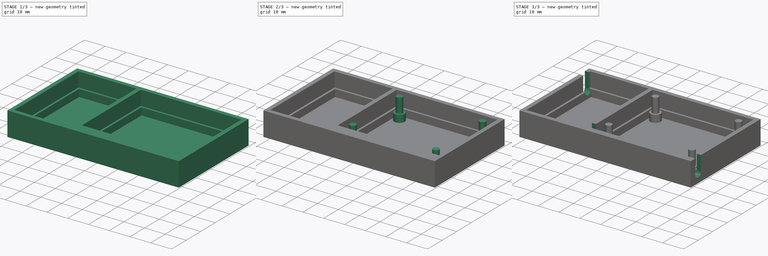
[diagram: build sequence overview — one tinted view per stage of 3, left to right]
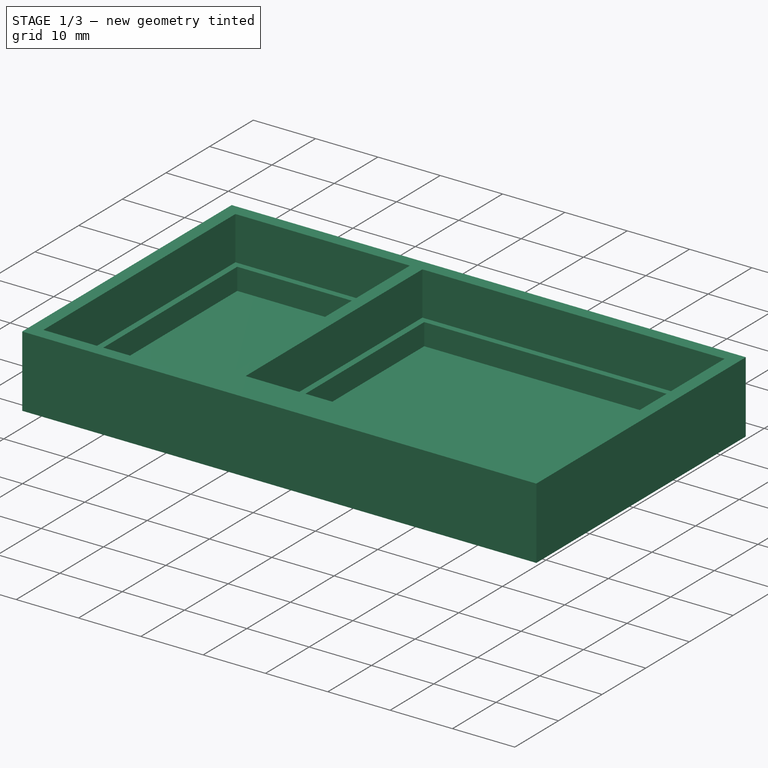
[diagram: stage 1 of 3 — iso view after this stage's code; geometry added in this stage tinted green]
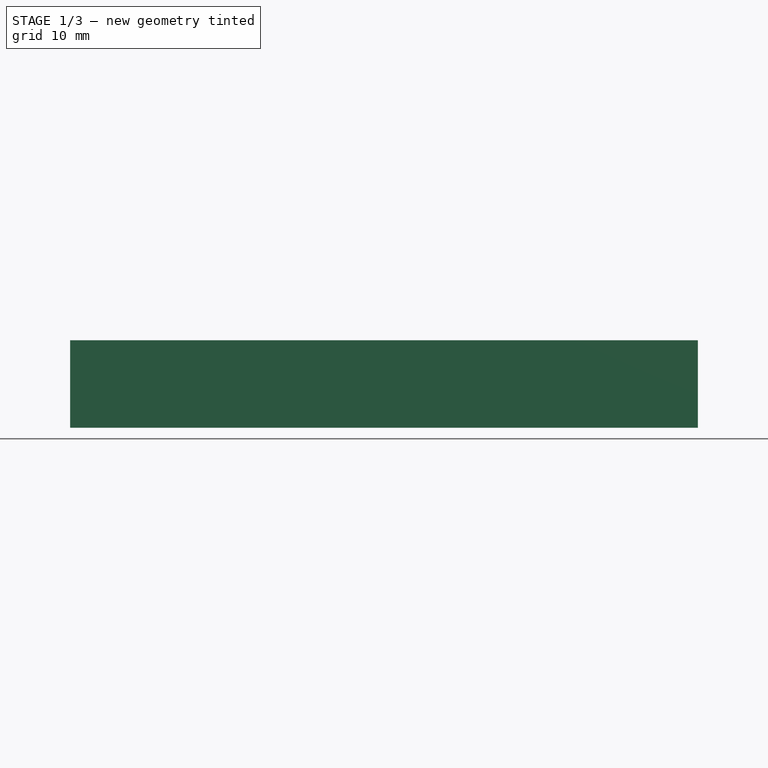
[diagram: stage 1 of 3 — front view after this stage's code; geometry added in this stage tinted green]
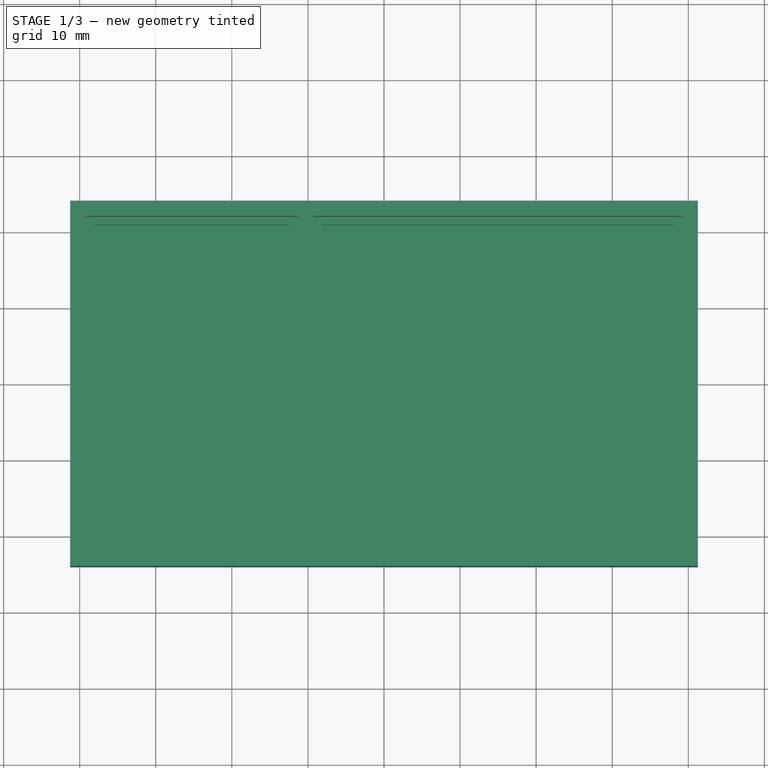
[diagram: stage 1 of 3 — top view after this stage's code; geometry added in this stage tinted green]
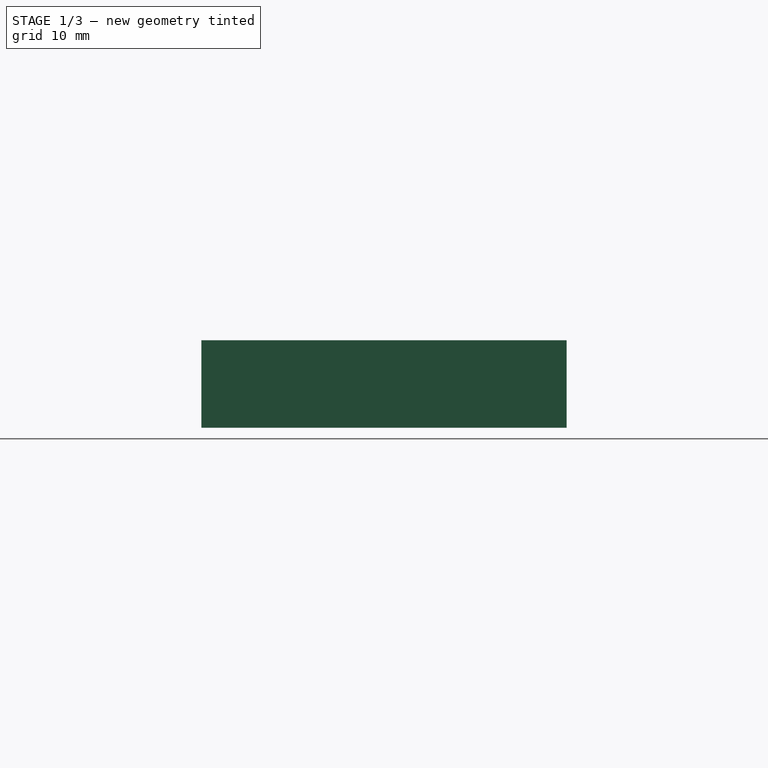
[diagram: stage 1 of 3 — right view after this stage's code; geometry added in this stage tinted green]
FCSTD DOCUMENT  (FreeCAD 1.0R39319 (Git))
Label: fan temperature controller case 
License: All rights reserved
objects: Sketcher::SketchObject×8, PartDesign::Pad×5, PartDesign::Pocket×3, PartDesign::Body×1
note: 41 computed .brp shape members not serialized (recipe doc carries the construction recipe); baked Part::Feature solids carry a one-line shape summary decoded from their .brp

FEATURE [Sketcher::SketchObject] Sketch005
  ArcFitTolerance = 1e-06
  AttachmentSupport = -> [XY_Plane001]
  FullyConstrained = true
  MakeInternals = false
  MapMode = 5
  sketch-geometry (12):
    g0: LineSegment StartX=-41.25 StartY=24 StartZ=0 EndX=-41.25 EndY=-24 EndZ=0
    g1: LineSegment StartX=-41.25 StartY=-24 StartZ=0 EndX=41.25 EndY=-24 EndZ=0
    g2: LineSegment StartX=41.25 StartY=-24 StartZ=0 EndX=41.25 EndY=24 EndZ=0
    g3: LineSegment StartX=41.25 StartY=24 StartZ=0 EndX=-41.25 EndY=24 EndZ=0
    g4: LineSegment StartX=-39.25 StartY=22 StartZ=0 EndX=-39.25 EndY=-22 EndZ=0
    g5: LineSegment StartX=-39.25 StartY=-22 StartZ=0 EndX=-11.25 EndY=-22 EndZ=0
    g6: LineSegment StartX=-11.25 StartY=-22 StartZ=0 EndX=-11.25 EndY=22 EndZ=0
    g7: LineSegment StartX=-11.25 StartY=22 StartZ=0 EndX=-39.25 EndY=22 EndZ=0
    g8: LineSegment StartX=-9.25 StartY=22 StartZ=0 EndX=-9.25 EndY=-18.5 EndZ=0
    g9: LineSegment StartX=-9.25 StartY=-18.5 StartZ=0 EndX=39.25 EndY=-18.5 EndZ=0
    g10: LineSegment StartX=39.25 StartY=-18.5 StartZ=0 EndX=39.25 EndY=22 EndZ=0
    g11: LineSegment StartX=39.25 StartY=22 StartZ=0 EndX=-9.25 EndY=22 EndZ=0
  constraints (34):
    c: Coincident(g0,g1)
    c: Coincident(g1,g2)
    c: Coincident(g2,g3)
    c: Coincident(g3,g0)
    c: Vertical(g2)
    c: Horizontal(g1)
    c: Coincident(g4,g5)
    c: Coincident(g5,g6)
    c: Coincident(g6,g7)
    c: Coincident(g7,g4)
    c: Vertical(g4)
    c: Vertical(g6)
    c: Horizontal(g5)
    c: Horizontal(g7)
    c: Coincident(g8,g9)
    c: Coincident(g9,g10)
    c: Coincident(g10,g11)
    c: Coincident(g11,g8)
    c: Vertical(g8)
    c: Vertical(g10)
    c: Horizontal(g9)
    c: Horizontal(g11)
    c: Symmetric(g0,g2,g-2)
    c: Symmetric(g0,g0,g-1)
    c: Distance(g4,g3) = 2
    c: Distance(g4,g1) = 2
    c: Horizontal(g6,g8)
    c: Distance(g4,g0) = 2
    c: Distance(g11) = 48.5
    c: Distance(g7) = 28
    c: Distance(g10,g2) = 2
    c: Distance(g8,g6) = 2
    c: Distance(g4) = 44
    c: Distance(g10) = 40.5
FEATURE [PartDesign::Pad] Pad003
  Direction = (0,0,1)
  Length = 7
  Length2 = 10
  Profile = -> Sketch005
  ReferenceAxis = -> Sketch005 [N_Axis]
  Refine = true
  Suppressed = false
  Type = 0
FEATURE [Sketcher::SketchObject] Sketch006
  ArcFitTolerance = 1e-06
  AttachmentSupport = -> [Pad003]
  ExternalGeometry = -> [Pad003]
  FullyConstrained = true
  MakeInternals = false
  MapMode = 5
  Placement = pos=(0,0,0) rot=(1,0,0;3.14159rad)
  sketch-geometry (12):
    g0: LineSegment StartX=-41.25 StartY=24 StartZ=0 EndX=-41.25 EndY=-24 EndZ=0
    g1: LineSegment StartX=-41.25 StartY=-24 StartZ=0 EndX=41.25 EndY=-24 EndZ=0
    g2: LineSegment StartX=41.25 StartY=-24 StartZ=0 EndX=41.25 EndY=24 EndZ=0
    g3: LineSegment StartX=41.25 StartY=24 StartZ=0 EndX=-41.25 EndY=24 EndZ=0
    g4: LineSegment StartX=-38.25 StartY=21 StartZ=0 EndX=-38.25 EndY=-21 EndZ=0
    g5: LineSegment StartX=-38.25 StartY=-21 StartZ=0 EndX=-12.25 EndY=-21 EndZ=0
    g6: LineSegment StartX=-12.25 StartY=-21 StartZ=0 EndX=-12.25 EndY=21 EndZ=0
    g7: LineSegment StartX=-12.25 StartY=21 StartZ=0 EndX=-38.25 EndY=21 EndZ=0
    g8: LineSegment StartX=-8.25 StartY=17.5 StartZ=0 EndX=-8.25 EndY=-21 EndZ=0
    g9: LineSegment StartX=-8.25 StartY=-21 StartZ=0 EndX=38.25 EndY=-21 EndZ=0
    g10: LineSegment StartX=38.25 StartY=-21 StartZ=0 EndX=38.25 EndY=17.5 EndZ=0
    g11: LineSegment StartX=38.25 StartY=17.5 StartZ=0 EndX=-8.25 EndY=17.5 EndZ=0
  constraints (33):
    c: Coincident(g0,g1)
    c: Coincident(g1,g2)
    c: Coincident(g2,g3)
    c: Coincident(g3,g0)
    c: Vertical(g2)
    c: Horizontal(g1)
    c: Coincident(g0,g-4)
    c: Coincident(g2,g-3)
    c: Coincident(g0,g-4)
    c: Coincident(g4,g5)
    c: Coincident(g5,g6)
    c: Coincident(g6,g7)
    c: Coincident(g7,g4)
    c: Vertical(g4)
    c: Vertical(g6)
    c: Horizontal(g5)
    c: Horizontal(g7)
    c: Coincident(g8,g9)
    c: Coincident(g9,g10)
    c: Coincident(g10,g11)
    c: Coincident(g11,g8)
    c: Vertical(g8)
    c: Vertical(g10)
    c: Horizontal(g9)
    c: Horizontal(g11)
    c: DistanceY(g4,g-6) = 1
    c: DistanceY(g-6,g4) = 1
    c: DistanceY(g10,g-8) = 1
    c: DistanceY(g-8,g9) = 1
    c: DistanceX(g-6,g4) = 1
    c: DistanceX(g6,g-5) = 1
    c: DistanceX(g-7,g8) = 1
    c: DistanceX(g10,g-8) = 1
FEATURE [PartDesign::Pad] Pad004
  BaseFeature = -> Pad003
  Direction = (0,0,-1)
  Length = 3.5
  Length2 = 10
  Profile = -> Sketch006
  ReferenceAxis = -> Sketch006 [N_Axis]
  Refine = true
  Suppressed = false
  Type = 0
FEATURE [Sketcher::SketchObject] Sketch007
  ArcFitTolerance = 1e-06
  AttachmentSupport = -> [Pad004]
  ExternalGeometry = -> [Pad004]
  FullyConstrained = true
  MakeInternals = false
  MapMode = 5
  Placement = pos=(0,0,-3.5) rot=(1,0,0;3.14159rad)
  sketch-geometry (4):
    g0: LineSegment StartX=-41.25 StartY=24 StartZ=0 EndX=-41.25 EndY=-24 EndZ=0
    g1: LineSegment StartX=-41.25 StartY=-24 StartZ=0 EndX=41.25 EndY=-24 EndZ=0
    g2: LineSegment StartX=41.25 StartY=-24 StartZ=0 EndX=41.25 EndY=24 EndZ=0
    g3: LineSegment StartX=41.25 StartY=24 StartZ=0 EndX=-41.25 EndY=24 EndZ=0
  constraints (9):
    c: Coincident(g0,g1)
    c: Coincident(g1,g2)
    c: Coincident(g2,g3)
    c: Coincident(g3,g0)
    c: Vertical(g2)
    c: Horizontal(g1)
    c: Coincident(g0,g-4)
    c: Coincident(g2,g-3)
    c: Coincident(g0,g-4)
FEATURE [PartDesign::Pad] Pad005
  BaseFeature = -> Pad004
  Direction = (0,0,-1)
  Length = 1
  Length2 = 10
  Profile = -> Sketch007
  ReferenceAxis = -> Sketch007 [N_Axis]
  Refine = true
  Suppressed = false
  Type = 0
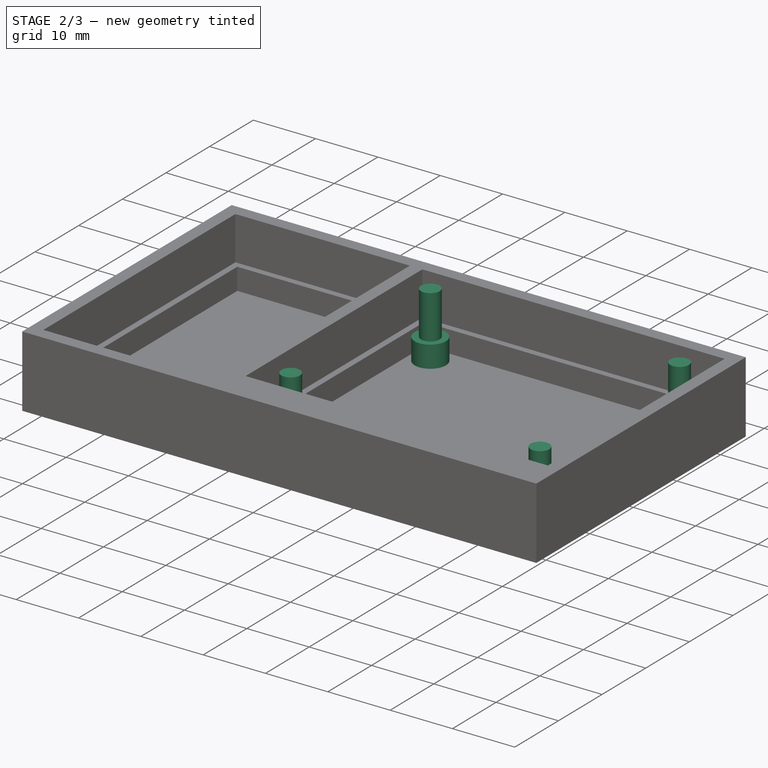
[diagram: stage 2 of 3 — iso view after this stage's code; geometry added in this stage tinted green]
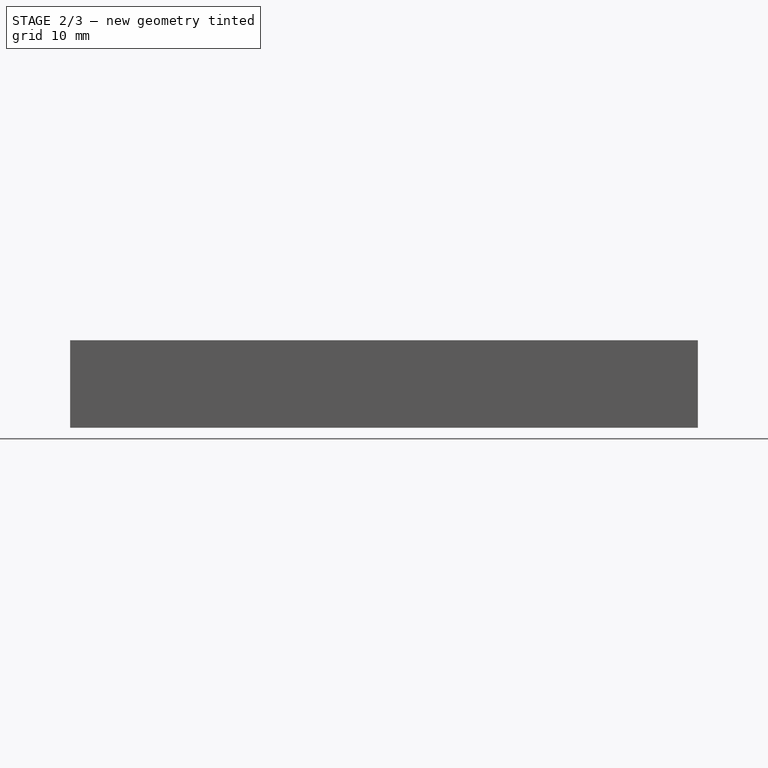
[diagram: stage 2 of 3 — front view after this stage's code; geometry added in this stage tinted green]
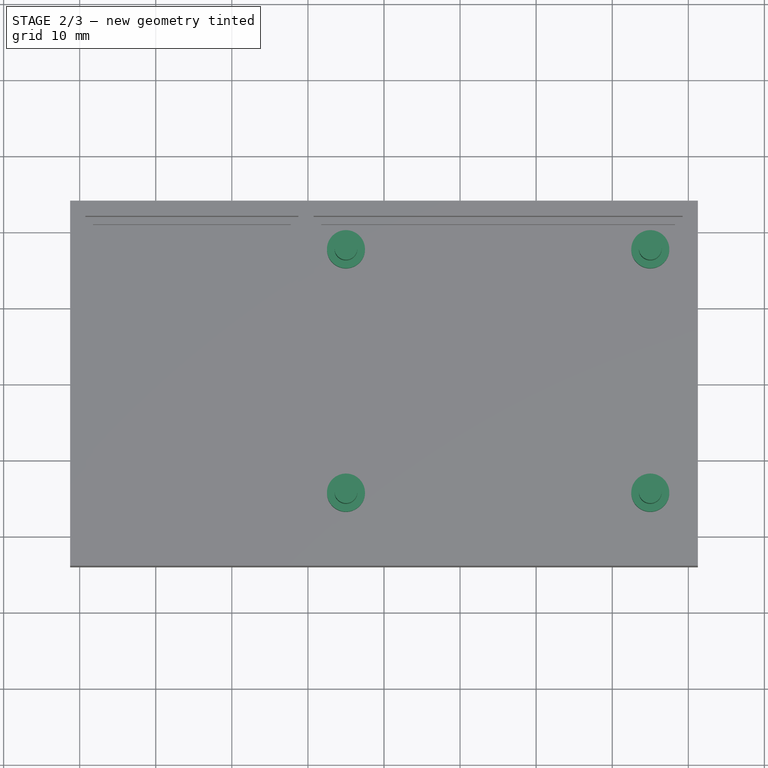
[diagram: stage 2 of 3 — top view after this stage's code; geometry added in this stage tinted green]
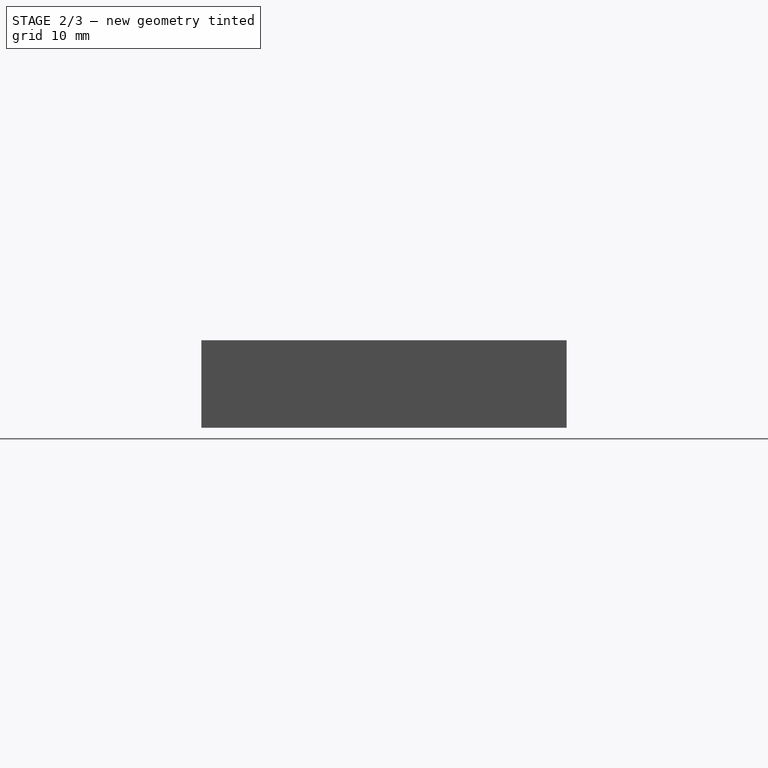
[diagram: stage 2 of 3 — right view after this stage's code; geometry added in this stage tinted green]
FEATURE [Sketcher::SketchObject] Sketch008
  ArcFitTolerance = 1e-06
  AttachmentSupport = -> [Pad005]
  ExternalGeometry = -> [Pad005]
  FullyConstrained = true
  MakeInternals = false
  MapMode = 5
  Placement = pos=(0,0,-3.5) rot=(0,0,1;0rad)
  sketch-geometry (4):
    g0: Circle CenterX=-5 CenterY=17.75 CenterZ=0 NormalX=0 NormalY=0 NormalZ=1 AngleXU=0 Radius=2.5
    g1: Circle CenterX=35 CenterY=17.75 CenterZ=0 NormalX=0 NormalY=0 NormalZ=1 AngleXU=0 Radius=2.5
    g2: Circle CenterX=35 CenterY=-14.25 CenterZ=0 NormalX=0 NormalY=0 NormalZ=1 AngleXU=0 Radius=2.5
    g3: Circle CenterX=-5 CenterY=-14.25 CenterZ=0 NormalX=0 NormalY=0 NormalZ=1 AngleXU=0 Radius=2.5
  constraints (12):
    c: Diameter(g0) = 5
    c: Equal(g0,g3)
    c: Equal(g0,g1)
    c: Equal(g0,g2)
    c: Horizontal(g0,g1)
    c: Vertical(g1,g2)
    c: Horizontal(g2,g3)
    c: Vertical(g3,g0)
    c: DistanceY(g0,g-4) = 4.25
    c: DistanceY(g-4,g3) = 4.25
    c: DistanceX(g-4,g0) = 4.25
    c: DistanceX(g1,g-3) = 4.25
FEATURE [PartDesign::Pad] Pad006
  BaseFeature = -> Pad005
  Direction = (0,0,1)
  Length = 3.5
  Length2 = 10
  Profile = -> Sketch008
  ReferenceAxis = -> Sketch008 [N_Axis]
  Refine = true
  Suppressed = false
  Type = 0
FEATURE [Sketcher::SketchObject] Sketch009
  ArcFitTolerance = 1e-06
  AttachmentSupport = -> [Pad006]
  ExternalGeometry = -> [Pad006]
  FullyConstrained = true
  MakeInternals = false
  MapMode = 5
  Placement = pos=(0,0,-9e-16) rot=(0,0,1;0rad)
  sketch-geometry (4):
    g0: Circle CenterX=-5 CenterY=17.75 CenterZ=0 NormalX=0 NormalY=0 NormalZ=1 AngleXU=0 Radius=1.5
    g1: Circle CenterX=35 CenterY=17.75 CenterZ=0 NormalX=0 NormalY=0 NormalZ=1 AngleXU=0 Radius=1.5
    g2: Circle CenterX=35 CenterY=-14.25 CenterZ=0 NormalX=0 NormalY=0 NormalZ=1 AngleXU=0 Radius=1.5
    g3: Circle CenterX=-5 CenterY=-14.25 CenterZ=0 NormalX=0 NormalY=0 NormalZ=1 AngleXU=0 Radius=1.5
  constraints (8):
    c: Diameter(g0) = 3
    c: Equal(g0,g3)
    c: Equal(g0,g1)
    c: Equal(g0,g2)
    c: Coincident(g0,g-3)
    c: Coincident(g1,g-5)
    c: Coincident(g2,g-6)
    c: Coincident(g3,g-4)
FEATURE [PartDesign::Pad] Pad007
  BaseFeature = -> Pad006
  Direction = (0,0,1)
  Length = 7
  Length2 = 10
  Profile = -> Sketch009
  ReferenceAxis = -> Sketch009 [N_Axis]
  Refine = true
  Suppressed = false
  Type = 0
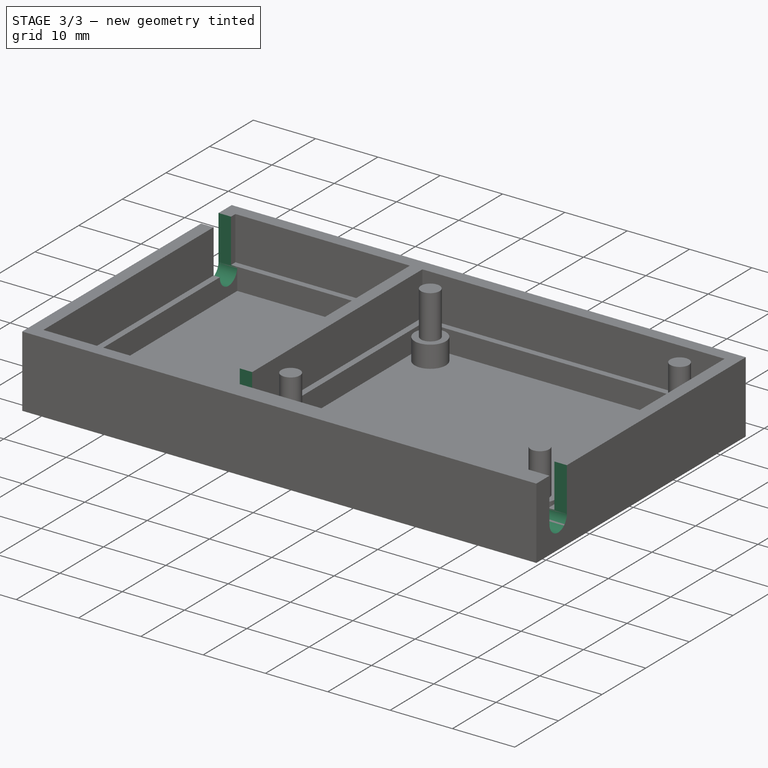
[diagram: stage 3 of 3 — iso view after this stage's code; geometry added in this stage tinted green]
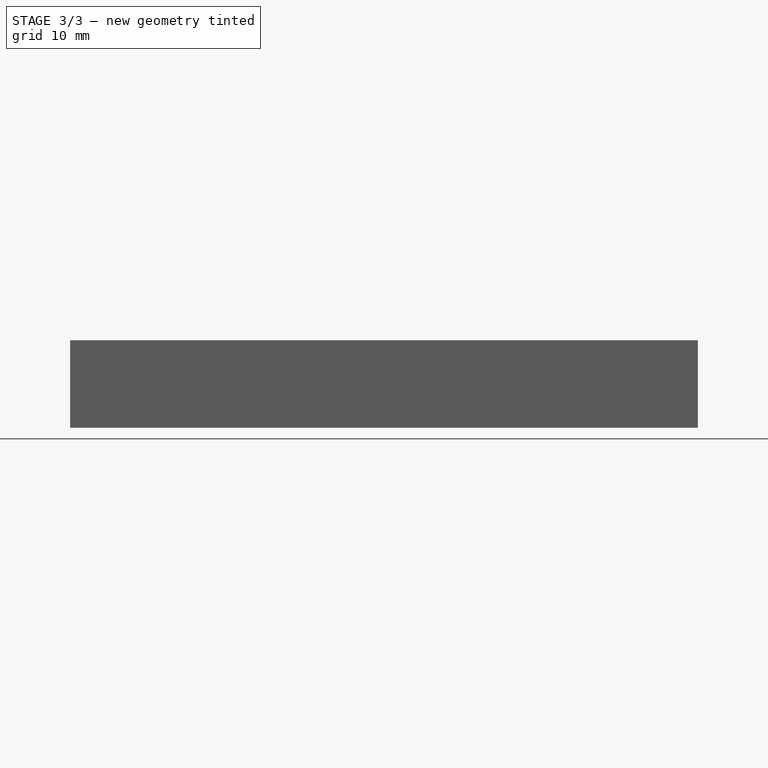
[diagram: stage 3 of 3 — front view after this stage's code; geometry added in this stage tinted green]
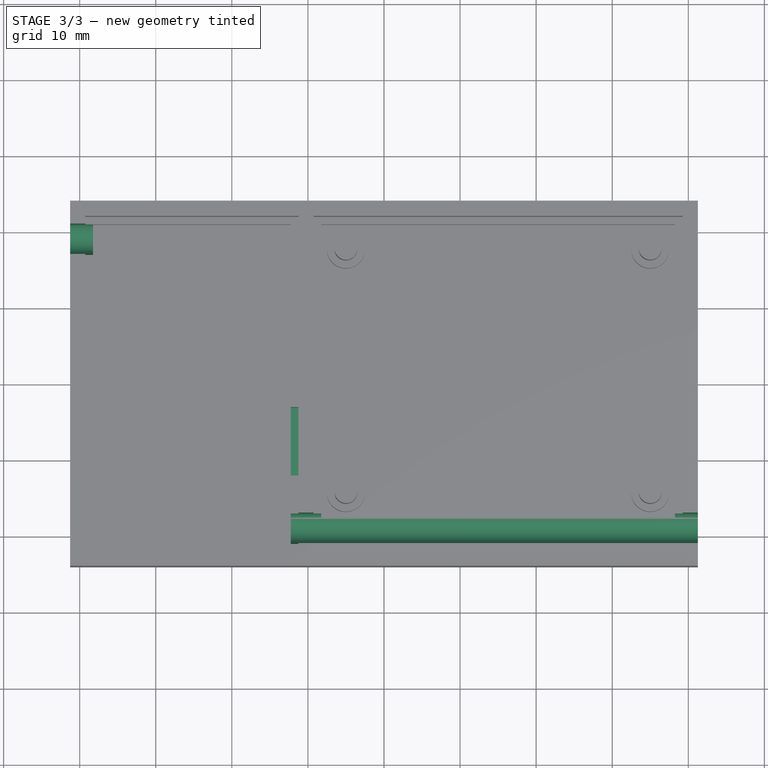
[diagram: stage 3 of 3 — top view after this stage's code; geometry added in this stage tinted green]
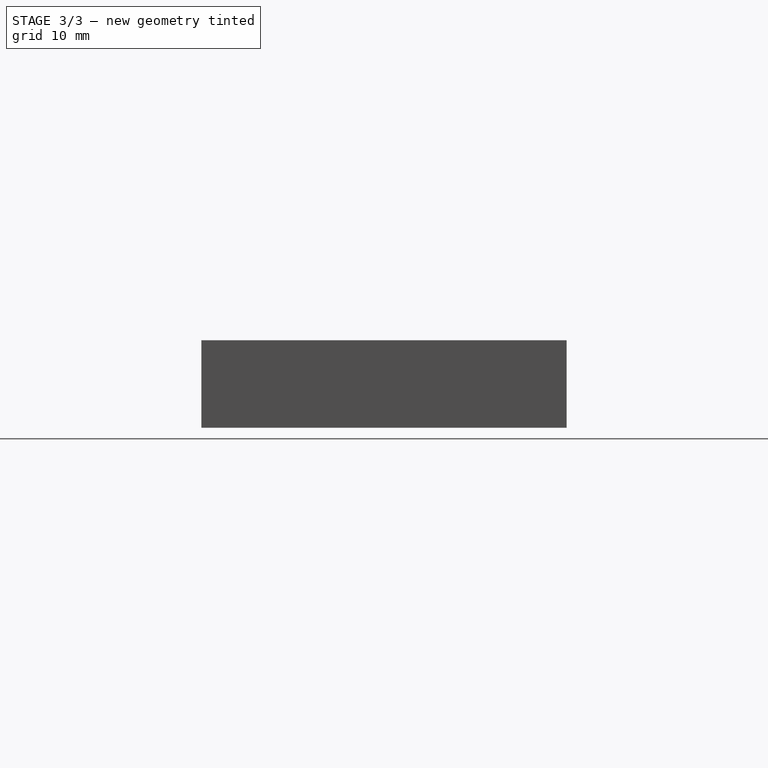
[diagram: stage 3 of 3 — right view after this stage's code; geometry added in this stage tinted green]
FEATURE [Sketcher::SketchObject] Sketch010
  ArcFitTolerance = 1e-06
  AttachmentSupport = -> [Pad007]
  ExternalGeometry = -> [Pad007]
  FullyConstrained = true
  MakeInternals = false
  MapMode = 5
  Placement = pos=(-38.25,0,0) rot=(0.57735,0.57735,0.57735;2.0944rad)
  sketch-geometry (4):
    g0: LineSegment StartX=21 StartY=-5e-16 StartZ=0 EndX=21 EndY=7 EndZ=0
    g1: LineSegment StartX=21 StartY=7 StartZ=0 EndX=17 EndY=7 EndZ=0
    g2: LineSegment StartX=17 StartY=7 StartZ=0 EndX=17 EndY=0 EndZ=0
    g3: ArcOfCircle CenterX=19 CenterY=0 CenterZ=0 NormalX=0 NormalY=0 NormalZ=1 AngleXU=0 Radius=2 StartAngle=3.14159 EndAngle=6.28319
  constraints (11):
    c: Coincident(g-3,g0)
    c: Vertical(g0)
    c: Coincident(g0,g1)
    c: Horizontal(g1)
    c: Coincident(g1,g2)
    c: PointOnObject(g2,g-3)
    c: Vertical(g2)
    c: Tangent(g2,g3) = -1.5708
    c: Coincident(g3,g0)
    c: Distance(g0) = 7
    c: Distance(g1) = 4
FEATURE [PartDesign::Pocket] Pocket002
  BaseFeature = -> Pad007
  Direction = (-1,0,0)
  Length = 5
  Length2 = 5
  Profile = -> Sketch010
  ReferenceAxis = -> Sketch010 [N_Axis]
  Refine = true
  Suppressed = false
  Type = 1
FEATURE [Sketcher::SketchObject] Sketch011
  ArcFitTolerance = 1e-06
  AttachmentSupport = -> [Pocket002]
  ExternalGeometry = -> [Pocket002]
  FullyConstrained = true
  MakeInternals = false
  MapMode = 5
  Placement = pos=(-12.25,0,0) rot=(0.57735,-0.57735,-0.57735;2.0944rad)
  sketch-geometry (4):
    g0: LineSegment StartX=21 StartY=-5e-16 StartZ=0 EndX=21 EndY=7 EndZ=0
    g1: LineSegment StartX=21 StartY=7 StartZ=0 EndX=17 EndY=7 EndZ=0
    g2: LineSegment StartX=17 StartY=7 StartZ=0 EndX=17 EndY=0 EndZ=0
    g3: ArcOfCircle CenterX=19 CenterY=0 CenterZ=0 NormalX=0 NormalY=0 NormalZ=1 AngleXU=0 Radius=2 StartAngle=3.14159 EndAngle=6.28319
  constraints (11):
    c: Coincident(g-3,g0)
    c: Vertical(g0)
    c: Coincident(g0,g1)
    c: Horizontal(g1)
    c: Coincident(g1,g2)
    c: PointOnObject(g2,g-3)
    c: Vertical(g2)
    c: Tangent(g2,g3) = -1.5708
    c: Coincident(g3,g0)
    c: Distance(g0) = 7
    c: Distance(g1) = 4
FEATURE [PartDesign::Pocket] Pocket003
  BaseFeature = -> Pocket002
  Direction = (1,0,0)
  Length = 5
  Length2 = 5
  Profile = -> Sketch011
  ReferenceAxis = -> Sketch011 [N_Axis]
  Refine = true
  Suppressed = false
  Type = 1
FEATURE [Sketcher::SketchObject] Sketch
  ArcFitTolerance = 1e-06
  AttachmentSupport = -> [Pocket003]
  ExternalGeometry = -> [Pocket003]
  FullyConstrained = true
  MakeInternals = false
  MapMode = 5
  sketch-geometry (4):
    g0: LineSegment StartX=-12.25 StartY=-3 StartZ=0 EndX=-12.25 EndY=-12 EndZ=0
    g1: LineSegment StartX=-12.25 StartY=-12 StartZ=0 EndX=-11.25 EndY=-12 EndZ=0
    g2: LineSegment StartX=-11.25 StartY=-12 StartZ=0 EndX=-11.25 EndY=-3 EndZ=0
    g3: LineSegment StartX=-11.25 StartY=-3 StartZ=0 EndX=-12.25 EndY=-3 EndZ=0
  constraints (12):
    c: Coincident(g0,g1)
    c: Coincident(g1,g2)
    c: Coincident(g2,g3)
    c: Coincident(g3,g0)
    c: Vertical(g0)
    c: Vertical(g2)
    c: Horizontal(g1)
    c: Horizontal(g3)
    c: PointOnObject(g0,g-4)
    c: PointOnObject(g1,g-5)
    c: Distance(g2) = 9
    c: Distance(g1,g-3) = 10
FEATURE [PartDesign::Pocket] Pocket
  BaseFeature = -> Pocket003
  Direction = (0,0,-1)
  Length = 0
  Length2 = 5
  Profile = -> Sketch
  ReferenceAxis = -> Sketch [N_Axis]
  Refine = true
  Suppressed = false
  Type = 3
  UpToFace = -> Pocket003 [Face33]
FEATURE [PartDesign::Body] Body001  label="Base"
  AllowCompound = false
  Group = -> [Sketch005,Pad003,Sketch006,Pad004,Sketch007,Pad005,Sketch008,Pad006,Sketch009,Pad007,Sketch010,Pocket002,Sketch011,Pocket003,Sketch,Pocket]
  Origin = -> Origin001
  Tip = -> Pocket
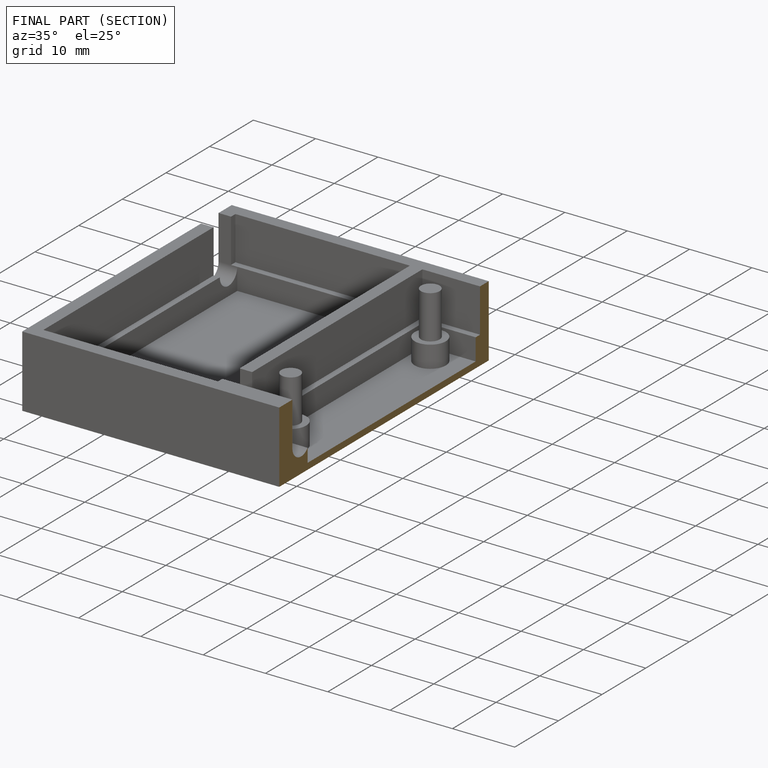
[diagram: finished part — half-section view (interior)]
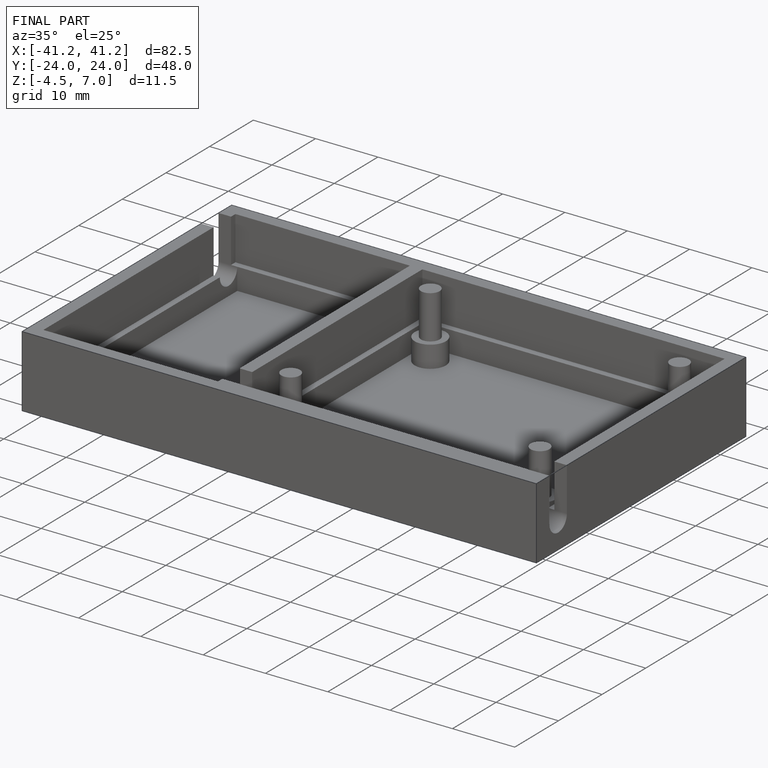
[diagram: finished part — iso view with bounding-box wireframe]
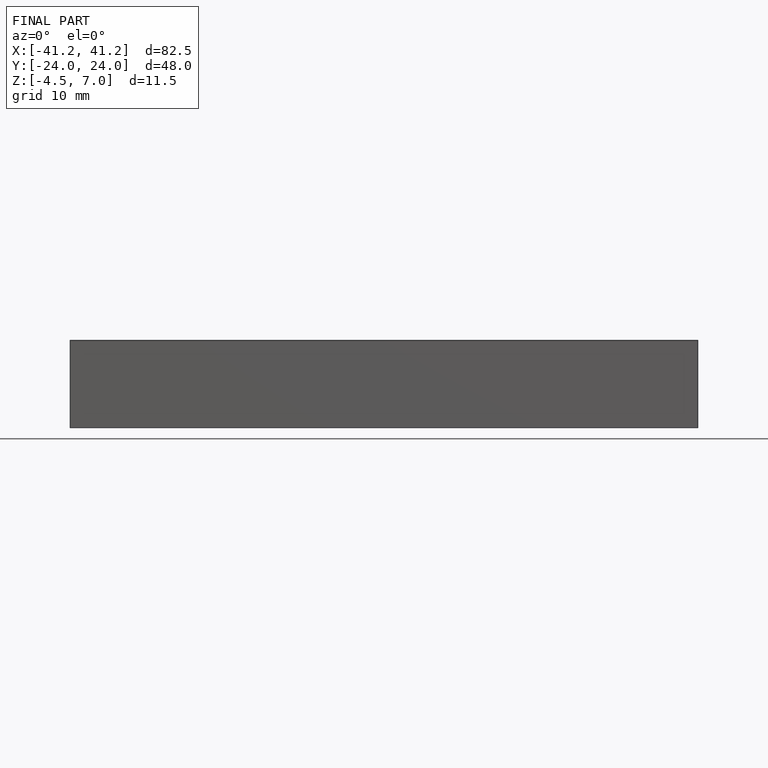
[diagram: finished part — front view with bounding-box wireframe]
